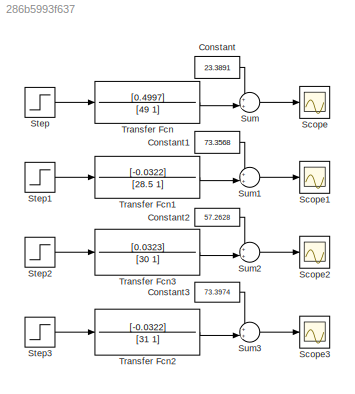
MODEL slx_286b5993f637
KIND model
CONFIG AbsTol = auto
CONFIG EnableMultiTasking = off
CONFIG FixedStep = auto
CONFIG MaxStep = auto
CONFIG MinStep = auto
CONFIG RelTol = 1e-3
CONFIG SampleTimeConstraint = Unconstrained
CONFIG SolverName = VariableStepAuto
CONFIG StartTime = 0.0
CONFIG StopTime = 300
BLOCK [Constant] Constant
  Value = 23.3891
BLOCK [Constant] Constant1
  Value = 73.3568
BLOCK [Constant] Constant2
  Value = 57.2628
BLOCK [Constant] Constant3
  Value = 73.3974
BLOCK [Scope] Scope
  Floating = off
  NumInputPorts = 1
  Ports = [1]
  ScopeSpecificationString = Simulink.scopes.TimeScopeBlockCfg('CurrentConfiguration', extmgr.ConfigurationSet(extmgr.Configuration('Core','General UI',true),extmgr.Configuration('Core','Source UI',true),extmgr.Configuration('Sources','WiredSimulink',true),extmgr.Configuration('Visuals','Time Domain',true,'SerializedDisplays',{struct('MinYLimReal','17.15683','MaxYLimReal','79.47952','YLabelReal','','MinYLimMag','17.15683','Ma...<+1404ch>
BLOCK [Scope] Scope1
  Floating = off
  NumInputPorts = 1
  Ports = [1]
  ScopeSpecificationString = Simulink.scopes.TimeScopeBlockCfg('CurrentConfiguration', extmgr.ConfigurationSet(extmgr.Configuration('Core','General UI',true),extmgr.Configuration('Core','Source UI',true),extmgr.Configuration('Sources','WiredSimulink',true,'DataLoggingVariableName','ScopeData1'),extmgr.Configuration('Visuals','Time Domain',true,'SerializedDisplays',{struct('MinYLimReal','55.2448','MaxYLimReal','75.36924','YLab...<+1365ch>
BLOCK [Scope] Scope2
  Floating = off
  NumInputPorts = 1
  Ports = [1]
  ScopeSpecificationString = Simulink.scopes.TimeScopeBlockCfg('CurrentConfiguration', extmgr.ConfigurationSet(extmgr.Configuration('Core','General UI',true),extmgr.Configuration('Core','Source UI',true),extmgr.Configuration('Sources','WiredSimulink',true,'DataLoggingVariableName','ScopeData2'),extmgr.Configuration('Visuals','Time Domain',true,'SerializedDisplays',{struct('MinYLimReal','55.24414','MaxYLimReal','75.4307','YLab...<+1365ch>
BLOCK [Scope] Scope3
  Floating = off
  NumInputPorts = 1
  Ports = [1]
  ScopeSpecificationString = Simulink.scopes.TimeScopeBlockCfg('CurrentConfiguration', extmgr.ConfigurationSet(extmgr.Configuration('Core','General UI',true),extmgr.Configuration('Core','Source UI',true),extmgr.Configuration('Sources','WiredSimulink',true,'DataLoggingVariableName','ScopeData3'),extmgr.Configuration('Visuals','Time Domain',true,'SerializedDisplays',{struct('MinYLimReal','37.17475','MaxYLimReal','77.42214','YLa...<+1394ch>
BLOCK [Step] Step
  After = 100
  SampleTime = 0
BLOCK [Step] Step1
  After = 500
  SampleTime = 0
BLOCK [Step] Step2
  After = 500
  SampleTime = 0
BLOCK [Step] Step3
  After = 1000
  SampleTime = 0
BLOCK [Sum] Sum
  Inputs = ++|
  Ports = [2, 1]
BLOCK [Sum] Sum1
  Inputs = ++|
  Ports = [2, 1]
BLOCK [Sum] Sum2
  Inputs = ++|
  Ports = [2, 1]
BLOCK [Sum] Sum3
  Inputs = ++|
  Ports = [2, 1]
BLOCK [TransferFcn] Transfer Fcn
  Denominator = [49 1]
  Numerator = [0.4997]
BLOCK [TransferFcn] Transfer Fcn1
  Denominator = [28.5 1]
  Numerator = [-0.0322]
BLOCK [TransferFcn] Transfer Fcn2
  Denominator = [31 1]
  Numerator = [-0.0322]
BLOCK [TransferFcn] Transfer Fcn3
  Denominator = [30 1]
  Numerator = [0.0323]
LINE Constant1:1 -> Sum1:1
LINE Constant2:1 -> Sum2:1
LINE Constant3:1 -> Sum3:1
LINE Constant:1 -> Sum:1
LINE Step1:1 -> Transfer Fcn1:1
LINE Step2:1 -> Transfer Fcn3:1
LINE Step3:1 -> Transfer Fcn2:1
LINE Step:1 -> Transfer Fcn:1
LINE Sum1:1 -> Scope1:1
LINE Sum2:1 -> Scope2:1
LINE Sum3:1 -> Scope3:1
LINE Sum:1 -> Scope:1
LINE Transfer Fcn1:1 -> Sum1:2
LINE Transfer Fcn2:1 -> Sum3:2
LINE Transfer Fcn3:1 -> Sum2:2
LINE Transfer Fcn:1 -> Sum:2
